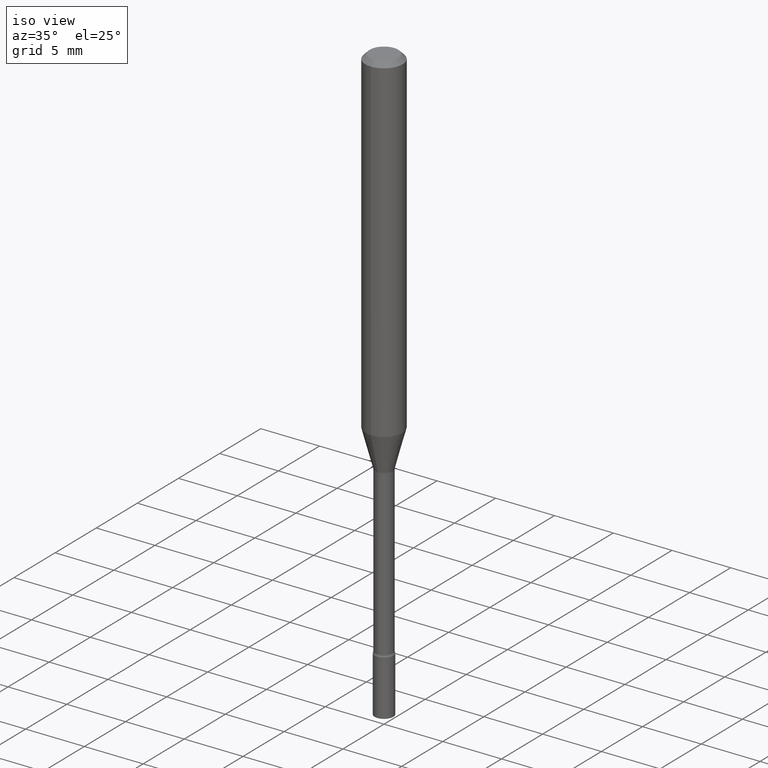
[diagram: clean part render]
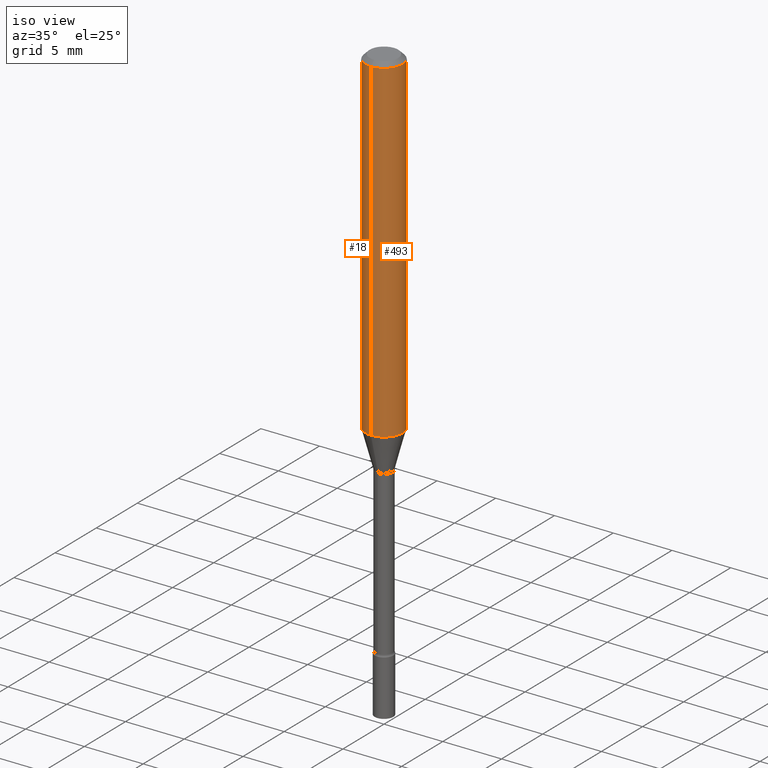
[diagram: same view with one multi-face feature highlighted, each face labeled with its STEP entity id]
A machine part, iso view. The highlighted faces form ONE feature: a constant-radius fillet chain: 2 tangent blend faces with common blend radius 1.5875 mm. The faces share edges in the B-rep.
Their STEP definitions:
[1] entity #493 (Cylinder):
#4 = DIRECTION ( 'NONE',  ( -2.445476893853745621E-29, 3.491469756841376044E-15, 1.000000000000000000 ) ) ;
#6 = ORIENTED_EDGE ( 'NONE', *, *, #40, .F. ) ;
#10 = VERTEX_POINT ( 'NONE', #397 ) ;
#20 = LINE ( 'NONE', #279, #259 ) ;
#40 = EDGE_CURVE ( 'NONE', #10, #135, #361, .T. ) ;
#41 = ORIENTED_EDGE ( 'NONE', *, *, #438, .T. ) ;
#45 = CARTESIAN_POINT ( 'NONE',  ( -4.364351673553916201E-16, -0.06250000000000000000, 2.182168598025860028E-16 ) ) ;
#48 = VECTOR ( 'NONE', #342, 39.37007874015748143 ) ;
#63 = CARTESIAN_POINT ( 'NONE',  ( 3.668215340780625700E-31, -5.237204635262074814E-17, -0.01500000000000003067 ) ) ;
#92 = CARTESIAN_POINT ( 'NONE',  ( 4.440892098500900291E-16, 0.06249999999999602401, -1.131536105567578554 ) ) ;
#113 = DIRECTION ( 'NONE',  ( -2.445476893853745901E-29, 3.491469756841376044E-15, 1.000000000000000000 ) ) ;
#135 = VERTEX_POINT ( 'NONE', #454 ) ;
#159 = CIRCLE ( 'NONE', #511, 0.06250000000000000000 ) ;
#164 = FACE_OUTER_BOUND ( 'NONE', #169, .T. ) ;
#169 = EDGE_LOOP ( 'NONE', ( #376, #41, #6, #415 ) ) ;
#203 = EDGE_CURVE ( 'NONE', #463, #10, #501, .T. ) ;
#229 = DIRECTION ( 'NONE',  ( -2.445476893853745621E-29, 3.491469756841376044E-15, 1.000000000000000000 ) ) ;
#259 = VECTOR ( 'NONE', #113, 39.37007874015748143 ) ;
#278 = EDGE_CURVE ( 'NONE', #463, #474, #159, .T. ) ;
#279 = CARTESIAN_POINT ( 'NONE',  ( 4.440892098500625669E-16, 0.06250000000000000000, -2.182168598025860028E-16 ) ) ;
#328 = AXIS2_PLACEMENT_3D ( 'NONE', #63, #471, #465 ) ;
#341 = CYLINDRICAL_SURFACE ( 'NONE', #440, 0.06250000000000000000 ) ;
#342 = DIRECTION ( 'NONE',  ( -2.445476893853745901E-29, 3.491469756841376044E-15, 1.000000000000000000 ) ) ;
#355 = DIRECTION ( 'NONE',  ( -6.982962677686265922E-15, -1.000000000000000000, 4.370956789862821150E-15 ) ) ;
#361 = CIRCLE ( 'NONE', #328, 0.06250000000000000000 ) ;
#376 = ORIENTED_EDGE ( 'NONE', *, *, #278, .T. ) ;
#394 = CARTESIAN_POINT ( 'NONE',  ( 2.767145400726764925E-29, -3.950724091363269662E-15, -1.131536105567578110 ) ) ;
#397 = CARTESIAN_POINT ( 'NONE',  ( -4.364351673553912750E-16, -0.06250000000000005551, -0.01499999999999981209 ) ) ;
#412 = CARTESIAN_POINT ( 'NONE',  ( 0.000000000000000000, 0.000000000000000000, 0.000000000000000000 ) ) ;
#413 = DIRECTION ( 'NONE',  ( -6.982962677686265922E-15, -1.000000000000000000, 3.491469756841376044E-15 ) ) ;
#415 = ORIENTED_EDGE ( 'NONE', *, *, #203, .F. ) ;
#438 = EDGE_CURVE ( 'NONE', #474, #135, #20, .T. ) ;
#440 = AXIS2_PLACEMENT_3D ( 'NONE', #412, #4, #413 ) ;
#445 = CARTESIAN_POINT ( 'NONE',  ( -4.364351673553641579E-16, -0.06250000000000398293, -1.131536105567577888 ) ) ;
#454 = CARTESIAN_POINT ( 'NONE',  ( 4.440892098500904235E-16, 0.06249999999999995143, -0.01500000000000024751 ) ) ;
#463 = VERTEX_POINT ( 'NONE', #445 ) ;
#465 = DIRECTION ( 'NONE',  ( -6.982962677686265922E-15, -1.000000000000000000, 3.483106191921935554E-15 ) ) ;
#471 = DIRECTION ( 'NONE',  ( -2.445476893853745621E-29, 3.491469756841376044E-15, 1.000000000000000000 ) ) ;
#474 = VERTEX_POINT ( 'NONE', #92 ) ;
#493 = ADVANCED_FACE ( 'NONE', ( #164 ), #341, .T. ) ;
#501 = LINE ( 'NONE', #45, #48 ) ;
#511 = AXIS2_PLACEMENT_3D ( 'NONE', #394, #229, #355 ) ;
[2] entity #18 (Cylinder):
#10 = VERTEX_POINT ( 'NONE', #397 ) ;
#18 = ADVANCED_FACE ( 'NONE', ( #32 ), #315, .T. ) ;
#20 = LINE ( 'NONE', #279, #259 ) ;
#31 = DIRECTION ( 'NONE',  ( -2.445476893853745621E-29, 3.491469756841376044E-15, 1.000000000000000000 ) ) ;
#32 = FACE_OUTER_BOUND ( 'NONE', #411, .T. ) ;
#43 = AXIS2_PLACEMENT_3D ( 'NONE', #266, #31, #478 ) ;
#45 = CARTESIAN_POINT ( 'NONE',  ( -4.364351673553916201E-16, -0.06250000000000000000, 2.182168598025860028E-16 ) ) ;
#48 = VECTOR ( 'NONE', #342, 39.37007874015748143 ) ;
#92 = CARTESIAN_POINT ( 'NONE',  ( 4.440892098500900291E-16, 0.06249999999999602401, -1.131536105567578554 ) ) ;
#113 = DIRECTION ( 'NONE',  ( -2.445476893853745901E-29, 3.491469756841376044E-15, 1.000000000000000000 ) ) ;
#121 = EDGE_CURVE ( 'NONE', #135, #10, #125, .T. ) ;
#125 = CIRCLE ( 'NONE', #395, 0.06250000000000000000 ) ;
#135 = VERTEX_POINT ( 'NONE', #454 ) ;
#142 = ORIENTED_EDGE ( 'NONE', *, *, #121, .F. ) ;
#186 = DIRECTION ( 'NONE',  ( -6.982962677686265922E-15, -1.000000000000000000, 4.370956789862821150E-15 ) ) ;
#202 = ORIENTED_EDGE ( 'NONE', *, *, #371, .T. ) ;
#203 = EDGE_CURVE ( 'NONE', #463, #10, #501, .T. ) ;
#204 = AXIS2_PLACEMENT_3D ( 'NONE', #500, #460, #186 ) ;
#259 = VECTOR ( 'NONE', #113, 39.37007874015748143 ) ;
#266 = CARTESIAN_POINT ( 'NONE',  ( 0.000000000000000000, 0.000000000000000000, 0.000000000000000000 ) ) ;
#279 = CARTESIAN_POINT ( 'NONE',  ( 4.440892098500625669E-16, 0.06250000000000000000, -2.182168598025860028E-16 ) ) ;
#315 = CYLINDRICAL_SURFACE ( 'NONE', #43, 0.06250000000000000000 ) ;
#316 = CIRCLE ( 'NONE', #204, 0.06250000000000000000 ) ;
#342 = DIRECTION ( 'NONE',  ( -2.445476893853745901E-29, 3.491469756841376044E-15, 1.000000000000000000 ) ) ;
#359 = DIRECTION ( 'NONE',  ( -2.445476893853745621E-29, 3.491469756841376044E-15, 1.000000000000000000 ) ) ;
#367 = ORIENTED_EDGE ( 'NONE', *, *, #203, .T. ) ;
#371 = EDGE_CURVE ( 'NONE', #474, #463, #316, .T. ) ;
#383 = ORIENTED_EDGE ( 'NONE', *, *, #438, .F. ) ;
#395 = AXIS2_PLACEMENT_3D ( 'NONE', #406, #359, #403 ) ;
#397 = CARTESIAN_POINT ( 'NONE',  ( -4.364351673553912750E-16, -0.06250000000000005551, -0.01499999999999981209 ) ) ;
#403 = DIRECTION ( 'NONE',  ( -6.982962677686265922E-15, -1.000000000000000000, 3.483106191921935554E-15 ) ) ;
#406 = CARTESIAN_POINT ( 'NONE',  ( 3.668215340780625700E-31, -5.237204635262074814E-17, -0.01500000000000003067 ) ) ;
#411 = EDGE_LOOP ( 'NONE', ( #383, #202, #367, #142 ) ) ;
#438 = EDGE_CURVE ( 'NONE', #474, #135, #20, .T. ) ;
#445 = CARTESIAN_POINT ( 'NONE',  ( -4.364351673553641579E-16, -0.06250000000000398293, -1.131536105567577888 ) ) ;
#454 = CARTESIAN_POINT ( 'NONE',  ( 4.440892098500904235E-16, 0.06249999999999995143, -0.01500000000000024751 ) ) ;
#460 = DIRECTION ( 'NONE',  ( -2.445476893853745621E-29, 3.491469756841376044E-15, 1.000000000000000000 ) ) ;
#463 = VERTEX_POINT ( 'NONE', #445 ) ;
#474 = VERTEX_POINT ( 'NONE', #92 ) ;
#478 = DIRECTION ( 'NONE',  ( -6.982962677686265922E-15, -1.000000000000000000, 3.491469756841376044E-15 ) ) ;
#500 = CARTESIAN_POINT ( 'NONE',  ( 2.767145400726764925E-29, -3.950724091363269662E-15, -1.131536105567578110 ) ) ;
#501 = LINE ( 'NONE', #45, #48 ) ;